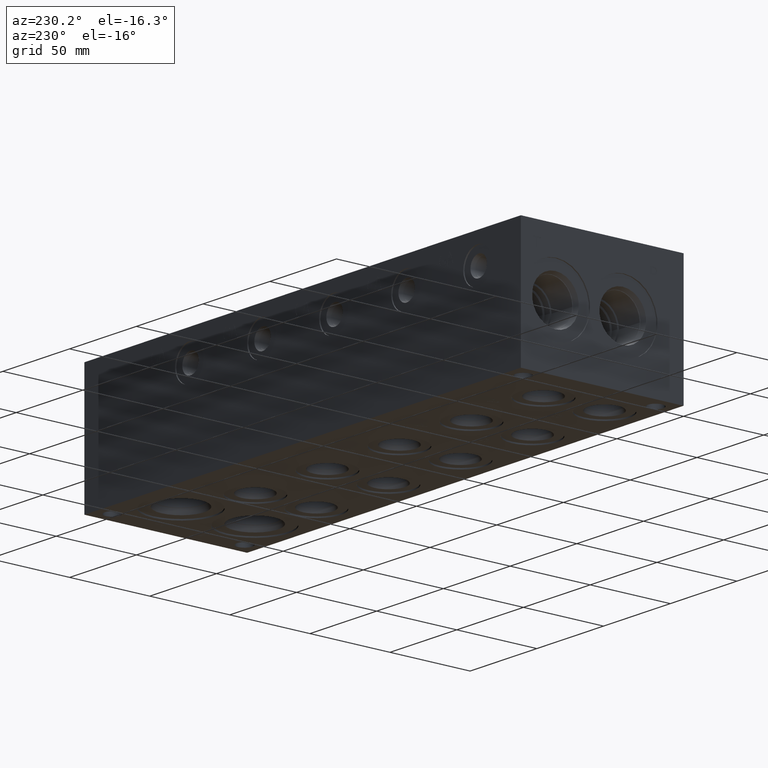
[diagram: clean part render]
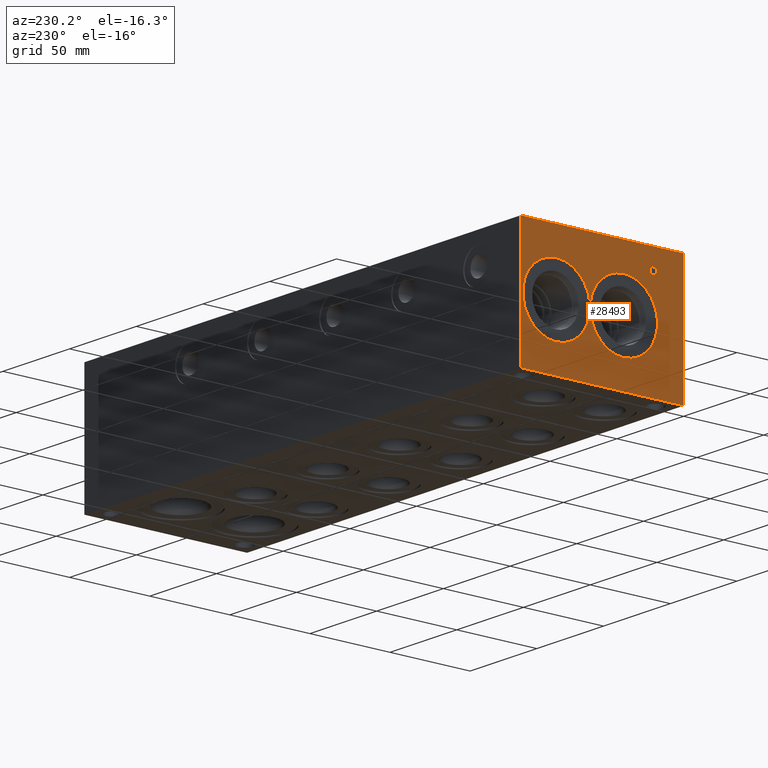
[diagram: same view with one face highlighted and labeled with its STEP entity id]
A machine part, auxiliary view. The second image highlights one B-rep face of the part: STEP entity #28493.
In plain terms, the highlighted planar face has unit normal (-1, 0, 0).
Its self-contained STEP definition (entity closure, byte-faithful):
#422=CIRCLE('',#29697,21.0185);
#423=CIRCLE('',#29698,21.0185);
#424=CIRCLE('',#29699,21.0185);
#425=CIRCLE('',#29700,21.0185);
#1244=FACE_BOUND('',#4676,.T.);
#1245=FACE_BOUND('',#4677,.T.);
#1246=FACE_BOUND('',#4678,.T.);
#1247=FACE_BOUND('',#4679,.T.);
#1938=PLANE('',#29696);
#3038=FACE_OUTER_BOUND('',#4675,.T.);
#4675=EDGE_LOOP('',(#23220,#23221,#23222,#23223));
#4676=EDGE_LOOP('',(#23224,#23225));
#4677=EDGE_LOOP('',(#23226,#23227));
#4678=EDGE_LOOP('',(#23228,#23229,#23230,#23231,#23232,#23233,#23234,#23235));
#4679=EDGE_LOOP('',(#23236,#23237,#23238,#23239,#23240,#23241,#23242,#23243,
#23244));
#5515=LINE('',#37866,#7923);
#6014=LINE('',#41185,#8422);
#6813=LINE('',#45393,#9221);
#7215=LINE('',#47580,#9623);
#7218=LINE('',#47586,#9626);
#7221=LINE('',#47592,#9629);
#7224=LINE('',#47598,#9632);
#7227=LINE('',#47604,#9635);
#7231=LINE('',#47645,#9639);
#7232=LINE('',#47656,#9640);
#7233=LINE('',#47658,#9641);
#7234=LINE('',#47660,#9642);
#7235=LINE('',#47662,#9643);
#7236=LINE('',#47664,#9644);
#7237=LINE('',#47666,#9645);
#7238=LINE('',#47668,#9646);
#7239=LINE('',#47669,#9647);
#7923=VECTOR('',#31128,10.);
#8422=VECTOR('',#31821,10.);
#9221=VECTOR('',#33240,10.);
#9623=VECTOR('',#33974,10.);
#9626=VECTOR('',#33979,10.);
#9629=VECTOR('',#33984,10.);
#9632=VECTOR('',#33989,10.);
#9635=VECTOR('',#33994,10.);
#9639=VECTOR('',#34002,10.);
#9640=VECTOR('',#34011,10.);
#9641=VECTOR('',#34012,10.);
#9642=VECTOR('',#34013,10.);
#9643=VECTOR('',#34014,10.);
#9644=VECTOR('',#34015,10.);
#9645=VECTOR('',#34016,10.);
#9646=VECTOR('',#34017,10.);
#9647=VECTOR('',#34018,10.);
#11000=B_SPLINE_CURVE_WITH_KNOTS('',2,(#47547,#47548,#47549,#47550),
 .UNSPECIFIED.,.F.,.F.,(3,1,3),(0.,1.,2.),.UNSPECIFIED.);
#11002=B_SPLINE_CURVE_WITH_KNOTS('',2,(#47568,#47569,#47570,#47571),
 .UNSPECIFIED.,.F.,.F.,(3,1,3),(0.,1.,2.),.UNSPECIFIED.);
#11004=B_SPLINE_CURVE_WITH_KNOTS('',2,(#47617,#47618,#47619,#47620),
 .UNSPECIFIED.,.F.,.F.,(3,1,3),(0.,1.,2.),.UNSPECIFIED.);
#11006=B_SPLINE_CURVE_WITH_KNOTS('',2,(#47635,#47636,#47637,#47638),
 .UNSPECIFIED.,.F.,.F.,(3,1,3),(0.,1.,2.),.UNSPECIFIED.);
#11230=VERTEX_POINT('',#37862);
#11231=VERTEX_POINT('',#37864);
#11893=VERTEX_POINT('',#41182);
#11894=VERTEX_POINT('',#41184);
#12938=VERTEX_POINT('',#47545);
#12939=VERTEX_POINT('',#47546);
#12942=VERTEX_POINT('',#47567);
#12944=VERTEX_POINT('',#47579);
#12946=VERTEX_POINT('',#47585);
#12948=VERTEX_POINT('',#47591);
#12950=VERTEX_POINT('',#47597);
#12952=VERTEX_POINT('',#47603);
#12954=VERTEX_POINT('',#47616);
#12956=VERTEX_POINT('',#47646);
#12957=VERTEX_POINT('',#47647);
#12958=VERTEX_POINT('',#47650);
#12959=VERTEX_POINT('',#47651);
#12960=VERTEX_POINT('',#47654);
#12961=VERTEX_POINT('',#47655);
#12962=VERTEX_POINT('',#47657);
#12963=VERTEX_POINT('',#47659);
#12964=VERTEX_POINT('',#47661);
#12965=VERTEX_POINT('',#47663);
#12966=VERTEX_POINT('',#47665);
#12967=VERTEX_POINT('',#47667);
#14102=EDGE_CURVE('',#11230,#11231,#5515,.T.);
#14932=EDGE_CURVE('',#11893,#11894,#6014,.T.);
#16012=EDGE_CURVE('',#11893,#11230,#6813,.T.);
#16591=EDGE_CURVE('',#12938,#12939,#11000,.T.);
#16595=EDGE_CURVE('',#12942,#12938,#11002,.T.);
#16598=EDGE_CURVE('',#12944,#12942,#7215,.T.);
#16601=EDGE_CURVE('',#12946,#12944,#7218,.T.);
#16604=EDGE_CURVE('',#12948,#12946,#7221,.T.);
#16607=EDGE_CURVE('',#12950,#12948,#7224,.T.);
#16610=EDGE_CURVE('',#12952,#12950,#7227,.T.);
#16613=EDGE_CURVE('',#12954,#12952,#11004,.T.);
#16616=EDGE_CURVE('',#12939,#12954,#11006,.T.);
#16618=EDGE_CURVE('',#11894,#11231,#7231,.T.);
#16619=EDGE_CURVE('',#12956,#12957,#422,.T.);
#16620=EDGE_CURVE('',#12957,#12956,#423,.T.);
#16621=EDGE_CURVE('',#12958,#12959,#424,.T.);
#16622=EDGE_CURVE('',#12959,#12958,#425,.T.);
#16623=EDGE_CURVE('',#12960,#12961,#7232,.T.);
#16624=EDGE_CURVE('',#12961,#12962,#7233,.T.);
#16625=EDGE_CURVE('',#12962,#12963,#7234,.T.);
#16626=EDGE_CURVE('',#12963,#12964,#7235,.T.);
#16627=EDGE_CURVE('',#12964,#12965,#7236,.T.);
#16628=EDGE_CURVE('',#12965,#12966,#7237,.T.);
#16629=EDGE_CURVE('',#12966,#12967,#7238,.T.);
#16630=EDGE_CURVE('',#12967,#12960,#7239,.T.);
#23220=ORIENTED_EDGE('',*,*,#16012,.T.);
#23221=ORIENTED_EDGE('',*,*,#14102,.T.);
#23222=ORIENTED_EDGE('',*,*,#16618,.F.);
#23223=ORIENTED_EDGE('',*,*,#14932,.F.);
#23224=ORIENTED_EDGE('',*,*,#16619,.T.);
#23225=ORIENTED_EDGE('',*,*,#16620,.T.);
#23226=ORIENTED_EDGE('',*,*,#16621,.T.);
#23227=ORIENTED_EDGE('',*,*,#16622,.T.);
#23228=ORIENTED_EDGE('',*,*,#16623,.T.);
#23229=ORIENTED_EDGE('',*,*,#16624,.T.);
#23230=ORIENTED_EDGE('',*,*,#16625,.T.);
#23231=ORIENTED_EDGE('',*,*,#16626,.T.);
#23232=ORIENTED_EDGE('',*,*,#16627,.T.);
#23233=ORIENTED_EDGE('',*,*,#16628,.T.);
#23234=ORIENTED_EDGE('',*,*,#16629,.T.);
#23235=ORIENTED_EDGE('',*,*,#16630,.T.);
#23236=ORIENTED_EDGE('',*,*,#16591,.T.);
#23237=ORIENTED_EDGE('',*,*,#16616,.T.);
#23238=ORIENTED_EDGE('',*,*,#16613,.T.);
#23239=ORIENTED_EDGE('',*,*,#16610,.T.);
#23240=ORIENTED_EDGE('',*,*,#16607,.T.);
#23241=ORIENTED_EDGE('',*,*,#16604,.T.);
#23242=ORIENTED_EDGE('',*,*,#16601,.T.);
#23243=ORIENTED_EDGE('',*,*,#16598,.T.);
#23244=ORIENTED_EDGE('',*,*,#16595,.T.);
#28493=ADVANCED_FACE('',(#3038,#1244,#1245,#1246,#1247),#1938,.T.);
#29696=AXIS2_PLACEMENT_3D('',#47644,#34000,#34001);
#29697=AXIS2_PLACEMENT_3D('',#47648,#34003,#34004);
#29698=AXIS2_PLACEMENT_3D('',#47649,#34005,#34006);
#29699=AXIS2_PLACEMENT_3D('',#47652,#34007,#34008);
#29700=AXIS2_PLACEMENT_3D('',#47653,#34009,#34010);
#31128=DIRECTION('',(0.,0.,1.));
#31821=DIRECTION('',(0.,0.,1.));
#33240=DIRECTION('',(0.,-1.,0.));
#33974=DIRECTION('',(0.,-1.,-5.56775304226774E-15));
#33979=DIRECTION('',(0.,-3.49676548440641E-15,1.));
#33984=DIRECTION('',(0.,1.,0.));
#33989=DIRECTION('',(0.,3.75218139805001E-15,-1.));
#33994=DIRECTION('',(0.,1.,0.));
#34000=DIRECTION('center_axis',(-1.,0.,0.));
#34001=DIRECTION('ref_axis',(0.,-1.,0.));
#34002=DIRECTION('',(0.,-1.,0.));
#34003=DIRECTION('center_axis',(1.,0.,0.));
#34004=DIRECTION('ref_axis',(0.,0.,1.));
#34005=DIRECTION('center_axis',(1.,0.,0.));
#34006=DIRECTION('ref_axis',(0.,0.,1.));
#34007=DIRECTION('center_axis',(1.,0.,0.));
#34008=DIRECTION('ref_axis',(0.,0.,1.));
#34009=DIRECTION('center_axis',(1.,0.,0.));
#34010=DIRECTION('ref_axis',(0.,0.,1.));
#34011=DIRECTION('',(0.,1.,0.));
#34012=DIRECTION('',(0.,-3.17280044688052E-15,1.));
#34013=DIRECTION('',(0.,1.,4.16909044227778E-15));
#34014=DIRECTION('',(0.,0.,1.));
#34015=DIRECTION('',(0.,-1.,-1.73992282570867E-15));
#34016=DIRECTION('',(0.,0.,-1.));
#34017=DIRECTION('',(0.,1.,0.));
#34018=DIRECTION('',(0.,3.17280044688052E-15,-1.));
#37862=CARTESIAN_POINT('',(0.,0.,0.));
#37864=CARTESIAN_POINT('',(0.,0.,76.2));
#37866=CARTESIAN_POINT('',(0.,0.,0.));
#41182=CARTESIAN_POINT('',(0.,101.6,0.));
#41184=CARTESIAN_POINT('',(0.,101.6,76.2));
#41185=CARTESIAN_POINT('',(0.,101.6,0.));
#45393=CARTESIAN_POINT('',(0.,101.6,0.));
#47545=CARTESIAN_POINT('',(0.,17.5306827976406,65.4850181439707));
#47546=CARTESIAN_POINT('',(0.,16.774240345468,63.9669873726039));
#47547=CARTESIAN_POINT('Ctrl Pts',(0.,17.5306827976406,65.4850181439707));
#47548=CARTESIAN_POINT('Ctrl Pts',(0.,17.1756179731514,65.2431623939564));
#47549=CARTESIAN_POINT('Ctrl Pts',(0.,16.774240345468,64.4970116758269));
#47550=CARTESIAN_POINT('Ctrl Pts',(0.,16.774240345468,63.9669873726039));
#47567=CARTESIAN_POINT('',(0.,19.1927978456117,65.8812499046326));
#47568=CARTESIAN_POINT('Ctrl Pts',(0.,19.1927978456117,65.8812499046326));
#47569=CARTESIAN_POINT('Ctrl Pts',(0.,18.6267524732376,65.8812499046326));
#47570=CARTESIAN_POINT('Ctrl Pts',(0.,17.834288951914,65.6959986918556));
#47571=CARTESIAN_POINT('Ctrl Pts',(0.,17.5306827976406,65.4850181439707));
#47579=CARTESIAN_POINT('',(0.,20.7880166223022,65.8812499046326));
#47580=CARTESIAN_POINT('',(0.,61.1940083111509,65.8812499046328));
#47585=CARTESIAN_POINT('',(0.,20.7880166223022,59.53125));
#47586=CARTESIAN_POINT('',(0.,20.7880166223023,29.7656249999999));
#47591=CARTESIAN_POINT('',(0.,19.9440944307627,59.53125));
#47592=CARTESIAN_POINT('',(0.,60.7720472153814,59.53125));
#47597=CARTESIAN_POINT('',(0.,19.9440944307627,61.8983488299279));
#47598=CARTESIAN_POINT('',(0.,19.9440944307628,30.9491744149638));
#47603=CARTESIAN_POINT('',(0.,19.2288189147628,61.8983488299279));
#47604=CARTESIAN_POINT('',(0.,60.4144094573814,61.8983488299279));
#47616=CARTESIAN_POINT('',(0.,17.3299939837989,62.5570198086904));
#47617=CARTESIAN_POINT('Ctrl Pts',(0.,17.3299939837989,62.5570198086904));
#47618=CARTESIAN_POINT('Ctrl Pts',(0.,17.6593294731802,62.2328301863307));
#47619=CARTESIAN_POINT('Ctrl Pts',(0.,18.5495644679139,61.8983488299279));
#47620=CARTESIAN_POINT('Ctrl Pts',(0.,19.2288189147628,61.8983488299279));
#47635=CARTESIAN_POINT('Ctrl Pts',(0.,16.774240345468,63.9669873726039));
#47636=CARTESIAN_POINT('Ctrl Pts',(0.,16.774240345468,63.5553180108774));
#47637=CARTESIAN_POINT('Ctrl Pts',(0.,17.0675547656982,62.8143131597695));
#47638=CARTESIAN_POINT('Ctrl Pts',(0.,17.3299939837989,62.5570198086904));
#47644=CARTESIAN_POINT('Origin',(0.,101.6,0.));
#47645=CARTESIAN_POINT('',(0.,101.6,76.2));
#47646=CARTESIAN_POINT('',(0.,79.375,59.1185));
#47647=CARTESIAN_POINT('',(0.,79.375,17.0815));
#47648=CARTESIAN_POINT('Origin',(0.,79.375,38.1));
#47649=CARTESIAN_POINT('Origin',(0.,79.375,38.1));
#47650=CARTESIAN_POINT('',(0.,37.3126,59.1185));
#47651=CARTESIAN_POINT('',(0.,37.3126,17.0815));
#47652=CARTESIAN_POINT('Origin',(0.,37.3126,38.1));
#47653=CARTESIAN_POINT('Origin',(0.,37.3126,38.1));
#47654=CARTESIAN_POINT('',(0.,91.487084728547,61.11875));
#47655=CARTESIAN_POINT('',(0.,92.3310069200865,61.11875));
#47656=CARTESIAN_POINT('',(0.,96.5435423642735,61.11875));
#47657=CARTESIAN_POINT('',(0.,92.3310069200865,66.7174533194815));
#47658=CARTESIAN_POINT('',(0.,92.3310069200866,30.559375));
#47659=CARTESIAN_POINT('',(0.,94.4613958670215,66.7174533194816));
#47660=CARTESIAN_POINT('',(0.,96.9655034600431,66.7174533194816));
#47661=CARTESIAN_POINT('',(0.,94.4613958670215,67.4687499046326));
#47662=CARTESIAN_POINT('',(0.,94.4613958670216,33.3587266597408));
#47663=CARTESIAN_POINT('',(0.,89.3566957816119,67.4687499046326));
#47664=CARTESIAN_POINT('',(0.,98.0306979335107,67.4687499046326));
#47665=CARTESIAN_POINT('',(0.,89.3566957816119,66.7174533194815));
#47666=CARTESIAN_POINT('',(0.,89.3566957816119,33.7343749523163));
#47667=CARTESIAN_POINT('',(0.,91.487084728547,66.7174533194815));
#47668=CARTESIAN_POINT('',(0.,95.4783478908059,66.7174533194815));
#47669=CARTESIAN_POINT('',(0.,91.4870847285471,33.3587266597408));